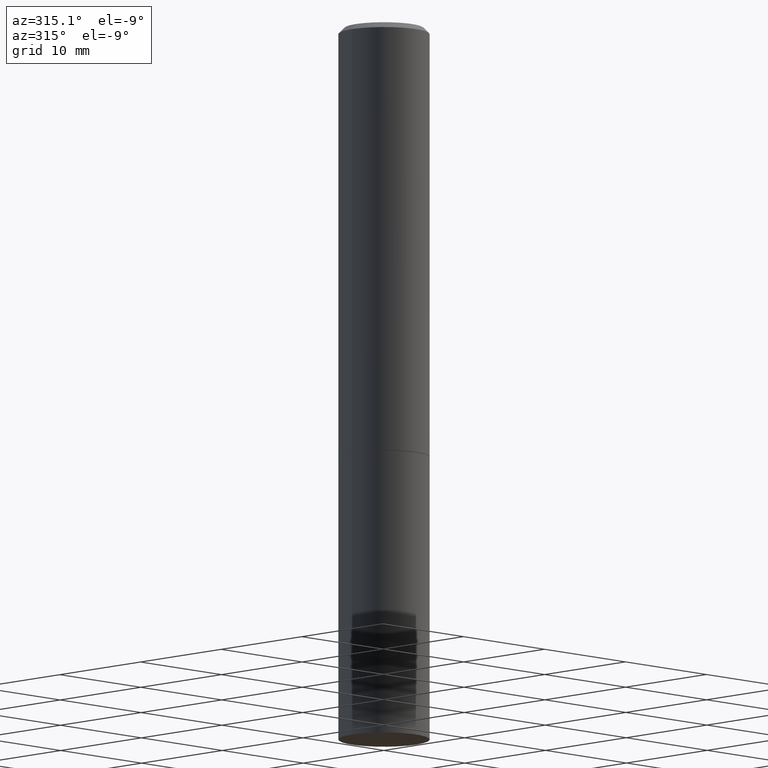
[diagram: clean part render]
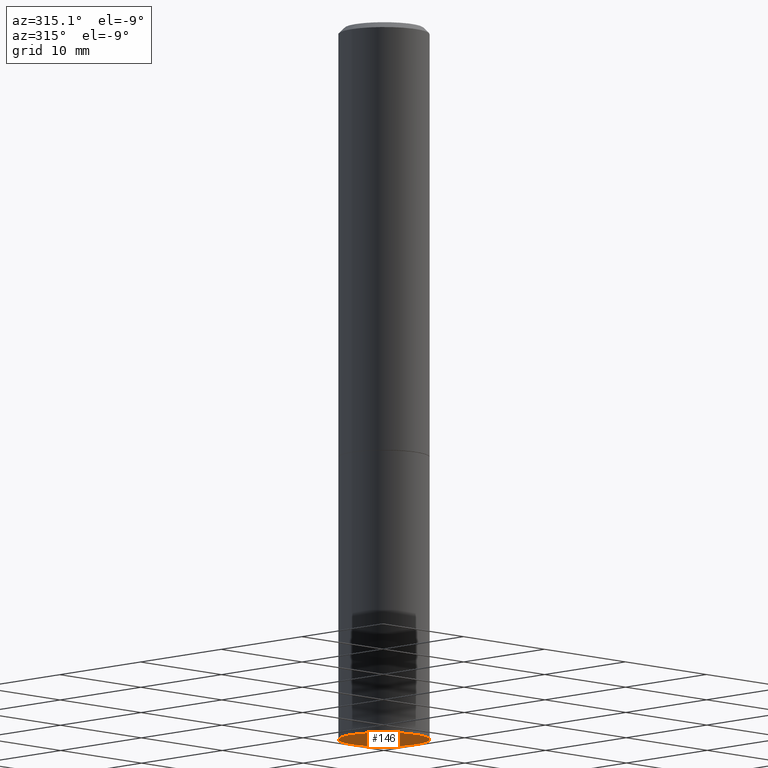
[diagram: same view with one face highlighted and labeled with its STEP entity id]
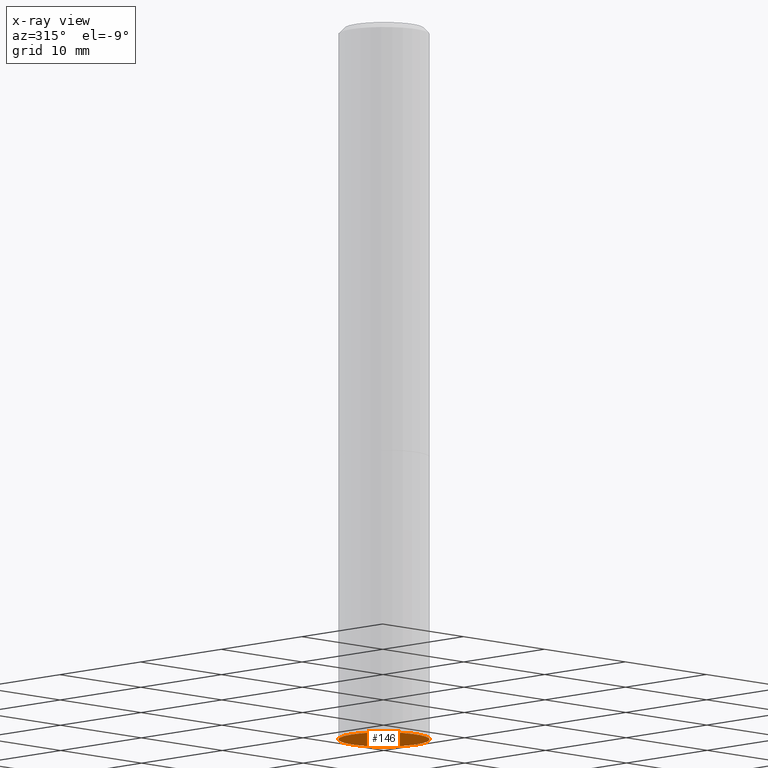
[diagram: x-ray of the same camera — body ghosted, the highlighted face saturated]
A machine part, auxiliary view. The second image highlights one B-rep face of the part: STEP entity #146.
The next image is the same camera in x-ray: the body ghosted, the highlighted face saturated — about 0% of this face is hidden behind the body in this view.
In plain terms, the highlighted planar face has unit normal (0, -0, -1).
Its self-contained STEP definition (entity closure, byte-faithful):
#7 = PLANE ( 'NONE',  #265 ) ;
#10 = DIRECTION ( 'NONE',  ( -1.000000000000000000, 6.982962677686265922E-15, -4.876176775795935793E-29 ) ) ;
#50 = ORIENTED_EDGE ( 'NONE', *, *, #133, .F. ) ;
#61 = AXIS2_PLACEMENT_3D ( 'NONE', #314, #145, #324 ) ;
#66 = DIRECTION ( 'NONE',  ( 2.438088387897960049E-29, -3.491481338843145188E-15, -1.000000000000000000 ) ) ;
#80 = VERTEX_POINT ( 'NONE', #290 ) ;
#81 = VERTEX_POINT ( 'NONE', #117 ) ;
#89 = CIRCLE ( 'NONE', #233, 0.1575000000000000011 ) ;
#117 = CARTESIAN_POINT ( 'NONE',  ( 0.1575000000000000011, -9.759737786468242027E-15, -2.480300000000000171 ) ) ;
#121 = DIRECTION ( 'NONE',  ( -2.445468806185136597E-29, 3.491481338843145583E-15, 1.000000000000000000 ) ) ;
#133 = EDGE_CURVE ( 'NONE', #81, #80, #291, .T. ) ;
#145 = DIRECTION ( 'NONE',  ( -2.445468806185136597E-29, 3.491481338843145583E-15, 1.000000000000000000 ) ) ;
#146 = ADVANCED_FACE ( 'NONE', ( #151 ), #7, .T. ) ;
#148 = CARTESIAN_POINT ( 'NONE',  ( 1.099816621735647434E-15, 0.1574999999999913136, -2.480300000000001059 ) ) ;
#151 = FACE_OUTER_BOUND ( 'NONE', #253, .T. ) ;
#152 = EDGE_CURVE ( 'NONE', #80, #81, #89, .T. ) ;
#168 = ORIENTED_EDGE ( 'NONE', *, *, #152, .F. ) ;
#178 = CARTESIAN_POINT ( 'NONE',  ( 6.065496279980994755E-29, -8.659921164732655335E-15, -2.480300000000000171 ) ) ;
#233 = AXIS2_PLACEMENT_3D ( 'NONE', #178, #121, #264 ) ;
#253 = EDGE_LOOP ( 'NONE', ( #50, #168 ) ) ;
#264 = DIRECTION ( 'NONE',  ( 1.000000000000000000, -6.982962677686261977E-15, 0.000000000000000000 ) ) ;
#265 = AXIS2_PLACEMENT_3D ( 'NONE', #148, #66, #10 ) ;
#290 = CARTESIAN_POINT ( 'NONE',  ( -0.1575000000000000011, -5.822483814998842744E-15, -2.480300000000000171 ) ) ;
#291 = CIRCLE ( 'NONE', #61, 0.1575000000000000011 ) ;
#314 = CARTESIAN_POINT ( 'NONE',  ( 6.065496279980994755E-29, -8.659921164732655335E-15, -2.480300000000000171 ) ) ;
#324 = DIRECTION ( 'NONE',  ( 1.000000000000000000, -6.982962677686261977E-15, 0.000000000000000000 ) ) ;